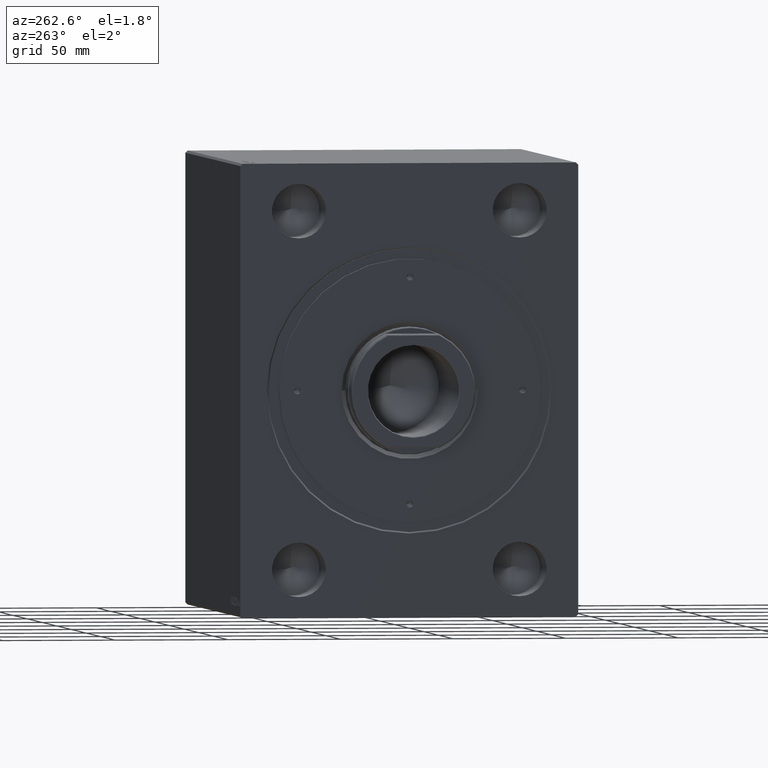
[diagram: clean part render]
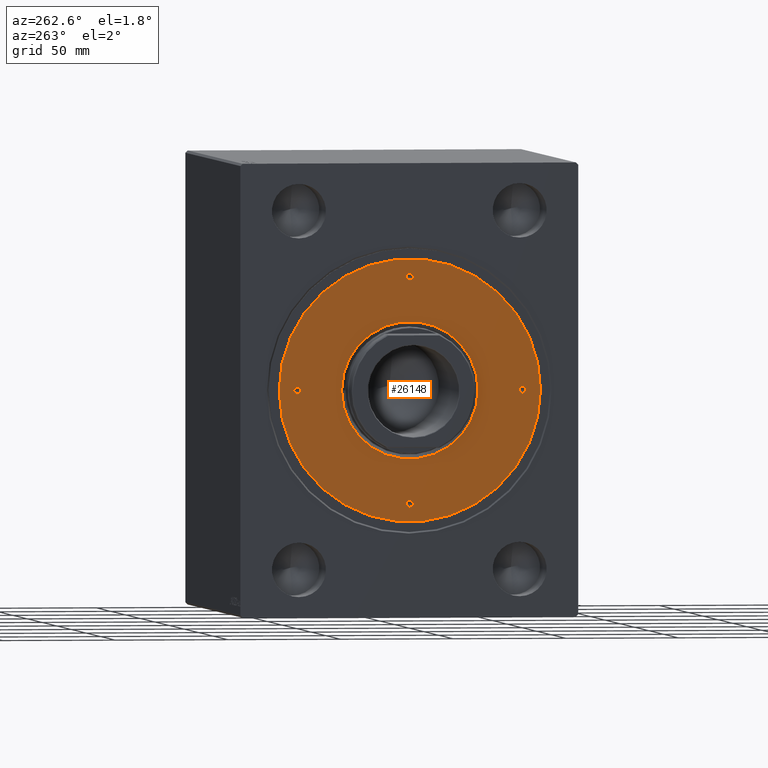
[diagram: same view with one face highlighted and labeled with its STEP entity id]
A machine part, auxiliary view. The second image highlights one B-rep face of the part: STEP entity #26148.
In plain terms, the highlighted planar face has unit normal (-1, 0, 0).
Its self-contained STEP definition (entity closure, byte-faithful):
#99 = DIRECTION ( 'NONE',  ( 1.000000000000000000, 0.000000000000000000, 0.000000000000000000 ) ) ;
#682 = VERTEX_POINT ( 'NONE', #1827 ) ;
#759 = DIRECTION ( 'NONE',  ( 1.000000000000000000, 0.000000000000000000, -0.000000000000000000 ) ) ;
#1212 = VERTEX_POINT ( 'NONE', #4336 ) ;
#1323 = CARTESIAN_POINT ( 'NONE',  ( 0.000000000000000000, 50.00000000000000000, 15.00000000000000000 ) ) ;
#1827 = CARTESIAN_POINT ( 'NONE',  ( 48.50000000000000711, 1.836970198721022785E-16, 15.00000000000000000 ) ) ;
#2154 = CARTESIAN_POINT ( 'NONE',  ( 0.000000000000000000, 50.00000000000000000, 15.00000000000000000 ) ) ;
#3229 = AXIS2_PLACEMENT_3D ( 'NONE', #37716, #41065, #10805 ) ;
#3256 = DIRECTION ( 'NONE',  ( 0.000000000000000000, 0.000000000000000000, 1.000000000000000000 ) ) ;
#4046 = DIRECTION ( 'NONE',  ( 1.000000000000000000, 0.000000000000000000, 0.000000000000000000 ) ) ;
#4336 = CARTESIAN_POINT ( 'NONE',  ( 58.00000000000000000, 7.102951435054648059E-15, 15.00000000000000000 ) ) ;
#5117 = DIRECTION ( 'NONE',  ( 1.000000000000000000, 0.000000000000000000, 0.000000000000000000 ) ) ;
#5155 = CARTESIAN_POINT ( 'NONE',  ( -30.29999999999997229, 3.710679801416476882E-15, 15.00000000000000000 ) ) ;
#5223 = DIRECTION ( 'NONE',  ( 1.000000000000000000, 0.000000000000000000, 0.000000000000000000 ) ) ;
#5343 = CIRCLE ( 'NONE', #3229, 1.499999999999994449 ) ;
#5409 = CIRCLE ( 'NONE', #35907, 1.499999999999996891 ) ;
#5520 = ORIENTED_EDGE ( 'NONE', *, *, #26105, .T. ) ;
#5712 = DIRECTION ( 'NONE',  ( -0.000000000000000000, -0.000000000000000000, 1.000000000000000000 ) ) ;
#5723 = DIRECTION ( 'NONE',  ( 1.000000000000000000, 0.000000000000000000, 0.000000000000000000 ) ) ;
#5935 = EDGE_CURVE ( 'NONE', #14157, #25854, #29286, .T. ) ;
#7443 = ORIENTED_EDGE ( 'NONE', *, *, #40788, .F. ) ;
#7705 = AXIS2_PLACEMENT_3D ( 'NONE', #9264, #3256, #9913 ) ;
#7874 = FACE_BOUND ( 'NONE', #14346, .T. ) ;
#8131 = AXIS2_PLACEMENT_3D ( 'NONE', #36169, #5712, #33045 ) ;
#8310 = CARTESIAN_POINT ( 'NONE',  ( -1.499999999999996891, 50.00000000000000000, 15.00000000000000000 ) ) ;
#8986 = AXIS2_PLACEMENT_3D ( 'NONE', #18098, #21002, #759 ) ;
#9264 = CARTESIAN_POINT ( 'NONE',  ( 0.000000000000000000, 0.000000000000000000, 15.00000000000000000 ) ) ;
#9540 = ORIENTED_EDGE ( 'NONE', *, *, #36297, .F. ) ;
#9913 = DIRECTION ( 'NONE',  ( 1.000000000000000000, 0.000000000000000000, 0.000000000000000000 ) ) ;
#9937 = VERTEX_POINT ( 'NONE', #21422 ) ;
#10804 = EDGE_LOOP ( 'NONE', ( #9540, #19277 ) ) ;
#10805 = DIRECTION ( 'NONE',  ( 1.000000000000000000, 0.000000000000000000, 0.000000000000000000 ) ) ;
#11202 = FACE_OUTER_BOUND ( 'NONE', #42015, .T. ) ;
#11434 = VERTEX_POINT ( 'NONE', #30981 ) ;
#12001 = DIRECTION ( 'NONE',  ( -0.000000000000000000, -0.000000000000000000, 1.000000000000000000 ) ) ;
#12148 = DIRECTION ( 'NONE',  ( -0.000000000000000000, -0.000000000000000000, 1.000000000000000000 ) ) ;
#12337 = AXIS2_PLACEMENT_3D ( 'NONE', #34063, #34507, #4046 ) ;
#12742 = EDGE_CURVE ( 'NONE', #1212, #17014, #20838, .T. ) ;
#13618 = VERTEX_POINT ( 'NONE', #8310 ) ;
#14157 = VERTEX_POINT ( 'NONE', #5155 ) ;
#14346 = EDGE_LOOP ( 'NONE', ( #5520, #25395 ) ) ;
#14756 = FACE_BOUND ( 'NONE', #24478, .T. ) ;
#15009 = CARTESIAN_POINT ( 'NONE',  ( -1.499999999999996891, -50.00000000000000000, 15.00000000000000000 ) ) ;
#15520 = AXIS2_PLACEMENT_3D ( 'NONE', #17683, #34581, #24353 ) ;
#15578 = CARTESIAN_POINT ( 'NONE',  ( 0.000000000000000000, -50.00000000000000000, 15.00000000000000000 ) ) ;
#15722 = VERTEX_POINT ( 'NONE', #15009 ) ;
#16785 = CARTESIAN_POINT ( 'NONE',  ( 0.000000000000000000, 0.000000000000000000, 15.00000000000000000 ) ) ;
#17014 = VERTEX_POINT ( 'NONE', #26438 ) ;
#17683 = CARTESIAN_POINT ( 'NONE',  ( 50.00000000000000000, 0.000000000000000000, 15.00000000000000000 ) ) ;
#18098 = CARTESIAN_POINT ( 'NONE',  ( 0.000000000000000000, 0.000000000000000000, 15.00000000000000000 ) ) ;
#18197 = EDGE_CURVE ( 'NONE', #682, #21713, #5343, .T. ) ;
#18387 = ORIENTED_EDGE ( 'NONE', *, *, #37183, .F. ) ;
#19277 = ORIENTED_EDGE ( 'NONE', *, *, #18197, .F. ) ;
#19531 = EDGE_CURVE ( 'NONE', #11434, #13618, #39485, .T. ) ;
#20377 = EDGE_CURVE ( 'NONE', #34042, #29093, #37967, .T. ) ;
#20838 = CIRCLE ( 'NONE', #12337, 58.00000000000000000 ) ;
#21002 = DIRECTION ( 'NONE',  ( 0.000000000000000000, 0.000000000000000000, 1.000000000000000000 ) ) ;
#21197 = ORIENTED_EDGE ( 'NONE', *, *, #19531, .F. ) ;
#21422 = CARTESIAN_POINT ( 'NONE',  ( 1.499999999999996891, -50.00000000000000000, 15.00000000000000000 ) ) ;
#21439 = PLANE ( 'NONE',  #8986 ) ;
#21713 = VERTEX_POINT ( 'NONE', #37216 ) ;
#22834 = CARTESIAN_POINT ( 'NONE',  ( 0.000000000000000000, -50.00000000000000000, 15.00000000000000000 ) ) ;
#23924 = EDGE_CURVE ( 'NONE', #15722, #9937, #5409, .T. ) ;
#24353 = DIRECTION ( 'NONE',  ( 1.000000000000000000, 0.000000000000000000, 0.000000000000000000 ) ) ;
#24478 = EDGE_LOOP ( 'NONE', ( #40298, #18387 ) ) ;
#24599 = CARTESIAN_POINT ( 'NONE',  ( 30.29999999999997229, 0.000000000000000000, 15.00000000000000000 ) ) ;
#24810 = DIRECTION ( 'NONE',  ( 1.000000000000000000, 0.000000000000000000, 0.000000000000000000 ) ) ;
#25395 = ORIENTED_EDGE ( 'NONE', *, *, #5935, .T. ) ;
#25854 = VERTEX_POINT ( 'NONE', #24599 ) ;
#25896 = DIRECTION ( 'NONE',  ( -0.000000000000000000, -0.000000000000000000, 1.000000000000000000 ) ) ;
#26105 = EDGE_CURVE ( 'NONE', #25854, #14157, #37393, .T. ) ;
#26148 = ADVANCED_FACE ( 'NONE', ( #14756, #31650, #28306, #34998, #7874, #11202 ), #21439, .T. ) ;
#26438 = CARTESIAN_POINT ( 'NONE',  ( -58.00000000000000000, 0.000000000000000000, 15.00000000000000000 ) ) ;
#27666 = CIRCLE ( 'NONE', #7705, 58.00000000000000000 ) ;
#28306 = FACE_BOUND ( 'NONE', #10804, .T. ) ;
#29093 = VERTEX_POINT ( 'NONE', #42968 ) ;
#29132 = DIRECTION ( 'NONE',  ( -0.000000000000000000, -0.000000000000000000, 1.000000000000000000 ) ) ;
#29260 = DIRECTION ( 'NONE',  ( 1.000000000000000000, 0.000000000000000000, 0.000000000000000000 ) ) ;
#29286 = CIRCLE ( 'NONE', #35669, 30.29999999999996874 ) ;
#29677 = ORIENTED_EDGE ( 'NONE', *, *, #12742, .T. ) ;
#30552 = DIRECTION ( 'NONE',  ( -0.000000000000000000, -0.000000000000000000, -1.000000000000000000 ) ) ;
#30981 = CARTESIAN_POINT ( 'NONE',  ( 1.499999999999996891, 50.00000000000000000, 15.00000000000000000 ) ) ;
#31650 = FACE_BOUND ( 'NONE', #38357, .T. ) ;
#31848 = CIRCLE ( 'NONE', #36123, 1.499999999999994449 ) ;
#32144 = DIRECTION ( 'NONE',  ( -0.000000000000000000, -0.000000000000000000, -1.000000000000000000 ) ) ;
#32703 = ORIENTED_EDGE ( 'NONE', *, *, #36091, .T. ) ;
#32916 = DIRECTION ( 'NONE',  ( 1.000000000000000000, 0.000000000000000000, 0.000000000000000000 ) ) ;
#33045 = DIRECTION ( 'NONE',  ( 1.000000000000000000, 0.000000000000000000, 0.000000000000000000 ) ) ;
#34042 = VERTEX_POINT ( 'NONE', #41451 ) ;
#34063 = CARTESIAN_POINT ( 'NONE',  ( 0.000000000000000000, 0.000000000000000000, 15.00000000000000000 ) ) ;
#34114 = AXIS2_PLACEMENT_3D ( 'NONE', #1323, #12001, #5117 ) ;
#34452 = EDGE_LOOP ( 'NONE', ( #7443, #34795 ) ) ;
#34478 = AXIS2_PLACEMENT_3D ( 'NONE', #2154, #12148, #29260 ) ;
#34507 = DIRECTION ( 'NONE',  ( 0.000000000000000000, 0.000000000000000000, 1.000000000000000000 ) ) ;
#34581 = DIRECTION ( 'NONE',  ( -0.000000000000000000, -0.000000000000000000, 1.000000000000000000 ) ) ;
#34680 = CIRCLE ( 'NONE', #15520, 1.499999999999994449 ) ;
#34795 = ORIENTED_EDGE ( 'NONE', *, *, #23924, .F. ) ;
#34998 = FACE_BOUND ( 'NONE', #34452, .T. ) ;
#35066 = CARTESIAN_POINT ( 'NONE',  ( 0.000000000000000000, 0.000000000000000000, 15.00000000000000000 ) ) ;
#35669 = AXIS2_PLACEMENT_3D ( 'NONE', #35066, #32144, #24810 ) ;
#35907 = AXIS2_PLACEMENT_3D ( 'NONE', #15578, #29132, #32916 ) ;
#36091 = EDGE_CURVE ( 'NONE', #17014, #1212, #27666, .T. ) ;
#36123 = AXIS2_PLACEMENT_3D ( 'NONE', #42814, #25896, #5223 ) ;
#36169 = CARTESIAN_POINT ( 'NONE',  ( -50.00000000000000000, 0.000000000000000000, 15.00000000000000000 ) ) ;
#36297 = EDGE_CURVE ( 'NONE', #21713, #682, #34680, .T. ) ;
#36406 = DIRECTION ( 'NONE',  ( -0.000000000000000000, -0.000000000000000000, 1.000000000000000000 ) ) ;
#37183 = EDGE_CURVE ( 'NONE', #29093, #34042, #31848, .T. ) ;
#37216 = CARTESIAN_POINT ( 'NONE',  ( 51.50000000000000000, 0.000000000000000000, 15.00000000000000000 ) ) ;
#37393 = CIRCLE ( 'NONE', #43822, 30.29999999999996874 ) ;
#37716 = CARTESIAN_POINT ( 'NONE',  ( 50.00000000000000000, 0.000000000000000000, 15.00000000000000000 ) ) ;
#37967 = CIRCLE ( 'NONE', #8131, 1.499999999999994449 ) ;
#38357 = EDGE_LOOP ( 'NONE', ( #21197, #43902 ) ) ;
#39485 = CIRCLE ( 'NONE', #34478, 1.499999999999996891 ) ;
#39791 = CIRCLE ( 'NONE', #42643, 1.499999999999996891 ) ;
#40298 = ORIENTED_EDGE ( 'NONE', *, *, #20377, .F. ) ;
#40788 = EDGE_CURVE ( 'NONE', #9937, #15722, #39791, .T. ) ;
#41065 = DIRECTION ( 'NONE',  ( -0.000000000000000000, -0.000000000000000000, 1.000000000000000000 ) ) ;
#41451 = CARTESIAN_POINT ( 'NONE',  ( -48.50000000000000711, 0.000000000000000000, 15.00000000000000000 ) ) ;
#41560 = EDGE_CURVE ( 'NONE', #13618, #11434, #43381, .T. ) ;
#42015 = EDGE_LOOP ( 'NONE', ( #32703, #29677 ) ) ;
#42643 = AXIS2_PLACEMENT_3D ( 'NONE', #22834, #36406, #5723 ) ;
#42814 = CARTESIAN_POINT ( 'NONE',  ( -50.00000000000000000, 0.000000000000000000, 15.00000000000000000 ) ) ;
#42968 = CARTESIAN_POINT ( 'NONE',  ( -51.50000000000000000, 1.836970198721022785E-16, 15.00000000000000000 ) ) ;
#43381 = CIRCLE ( 'NONE', #34114, 1.499999999999996891 ) ;
#43822 = AXIS2_PLACEMENT_3D ( 'NONE', #16785, #30552, #99 ) ;
#43902 = ORIENTED_EDGE ( 'NONE', *, *, #41560, .F. ) ;